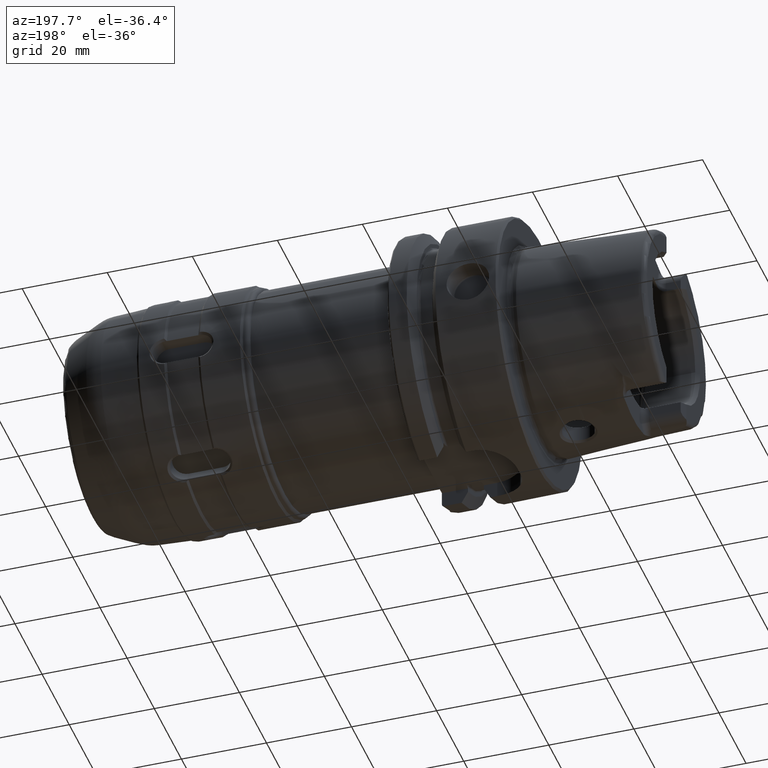
[diagram: clean part render]
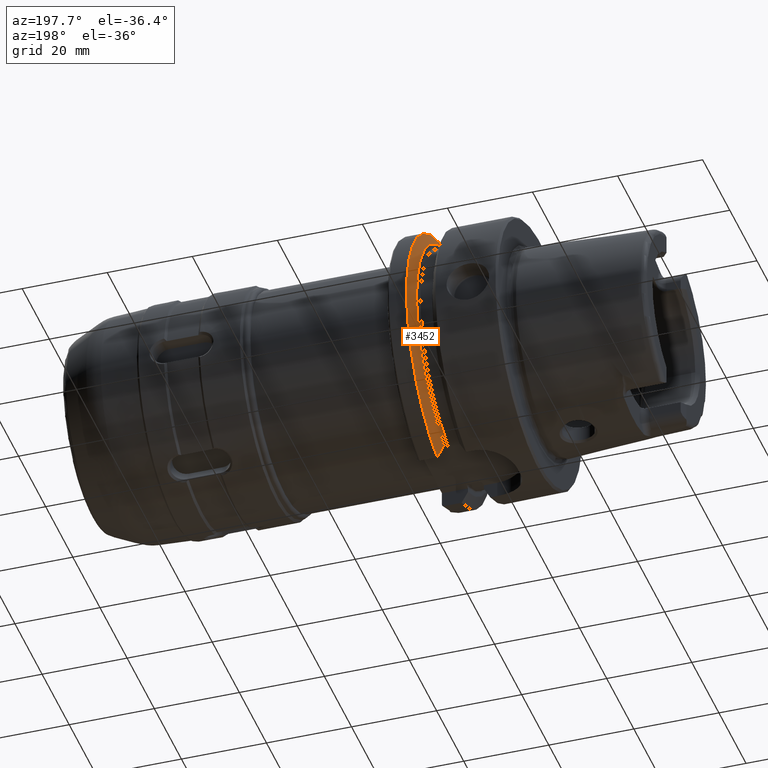
[diagram: same view with one face highlighted and labeled with its STEP entity id]
A machine part, auxiliary view. The second image highlights one B-rep face of the part: STEP entity #3452.
In plain terms, the highlighted conical surface has half-angle 60 deg.
Its self-contained STEP definition (entity closure, byte-faithful):
#64=(
BOUNDED_CURVE()
B_SPLINE_CURVE(2,(#6023,#6024,#6025),.UNSPECIFIED.,.F.,.F.)
B_SPLINE_CURVE_WITH_KNOTS((3,3),(0.,0.311314369989023),.UNSPECIFIED.)
CURVE()
GEOMETRIC_REPRESENTATION_ITEM()
RATIONAL_B_SPLINE_CURVE((1.,1.00102053193238,1.))
REPRESENTATION_ITEM('')
);
#67=(
BOUNDED_CURVE()
B_SPLINE_CURVE(2,(#6230,#6231,#6232),.UNSPECIFIED.,.F.,.F.)
B_SPLINE_CURVE_WITH_KNOTS((3,3),(0.,0.308905667770379),.UNSPECIFIED.)
CURVE()
GEOMETRIC_REPRESENTATION_ITEM()
RATIONAL_B_SPLINE_CURVE((1.,1.00099999355179,1.))
REPRESENTATION_ITEM('')
);
#240=CONICAL_SURFACE('',#3807,30.1987976320958,1.0471975511966);
#424=FACE_OUTER_BOUND('',#637,.T.);
#637=EDGE_LOOP('',(#2584,#2585,#2586,#2587));
#1216=CIRCLE('',#3800,31.5);
#1220=CIRCLE('',#3808,28.8975952641916);
#1472=VERTEX_POINT('',#6020);
#1473=VERTEX_POINT('',#6022);
#1502=VERTEX_POINT('',#6214);
#1505=VERTEX_POINT('',#6228);
#1867=EDGE_CURVE('',#1473,#1472,#64,.T.);
#1913=EDGE_CURVE('',#1473,#1502,#1216,.T.);
#1920=EDGE_CURVE('',#1472,#1505,#1220,.T.);
#1921=EDGE_CURVE('',#1505,#1502,#67,.T.);
#2584=ORIENTED_EDGE('',*,*,#1867,.T.);
#2585=ORIENTED_EDGE('',*,*,#1920,.T.);
#2586=ORIENTED_EDGE('',*,*,#1921,.T.);
#2587=ORIENTED_EDGE('',*,*,#1913,.F.);
#3452=ADVANCED_FACE('',(#424),#240,.T.);
#3800=AXIS2_PLACEMENT_3D('',#6215,#4412,#4413);
#3807=AXIS2_PLACEMENT_3D('',#6227,#4429,#4430);
#3808=AXIS2_PLACEMENT_3D('',#6229,#4431,#4432);
#4412=DIRECTION('center_axis',(1.,0.,0.));
#4413=DIRECTION('ref_axis',(0.,0.,-1.));
#4429=DIRECTION('center_axis',(1.,0.,0.));
#4430=DIRECTION('ref_axis',(0.,1.,0.));
#4431=DIRECTION('center_axis',(1.,0.,0.));
#4432=DIRECTION('ref_axis',(0.,0.,-1.));
#6020=CARTESIAN_POINT('',(19.875,9.,-27.4603534582684));
#6022=CARTESIAN_POINT('',(21.3774990747593,9.,-30.1869176962472));
#6023=CARTESIAN_POINT('Ctrl Pts',(21.3774990747593,9.,-30.1869176962472));
#6024=CARTESIAN_POINT('Ctrl Pts',(20.5907174110267,9.,-28.7648946319029));
#6025=CARTESIAN_POINT('Ctrl Pts',(19.875,9.,-27.4603534582684));
#6214=CARTESIAN_POINT('',(21.3774990747593,8.,30.4671954731642));
#6215=CARTESIAN_POINT('Origin',(21.3774990747593,0.,0.));
#6227=CARTESIAN_POINT('Origin',(20.6262495373797,0.,0.));
#6228=CARTESIAN_POINT('',(19.875,8.,27.7681654426977));
#6229=CARTESIAN_POINT('Origin',(19.875,0.,0.));
#6230=CARTESIAN_POINT('Ctrl Pts',(19.875,8.,27.7681654426977));
#6231=CARTESIAN_POINT('Ctrl Pts',(20.5914314297926,8.,29.0595327079868));
#6232=CARTESIAN_POINT('Ctrl Pts',(21.3774990747593,8.,30.4671954731642));